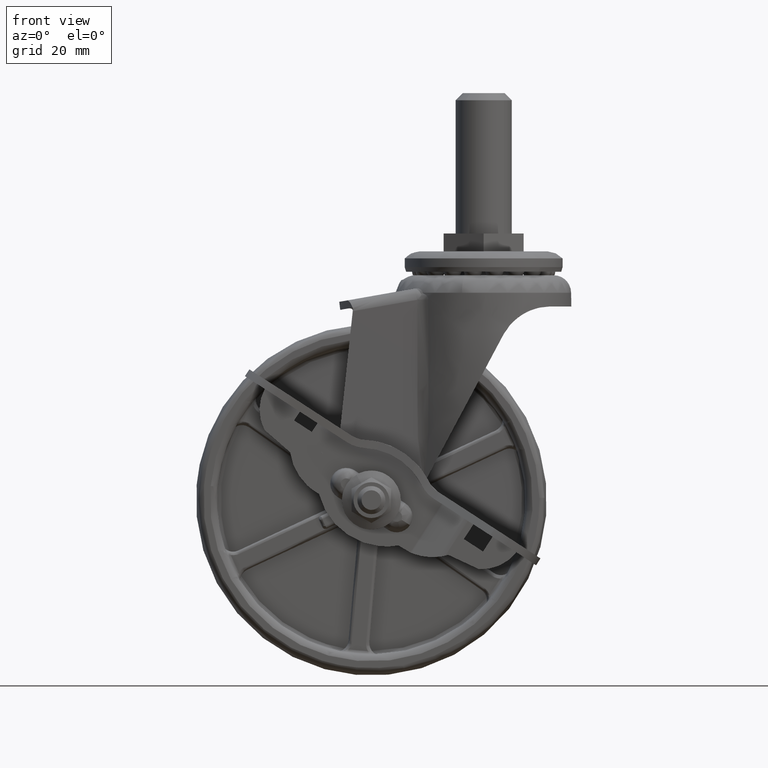
[diagram: clean part render]
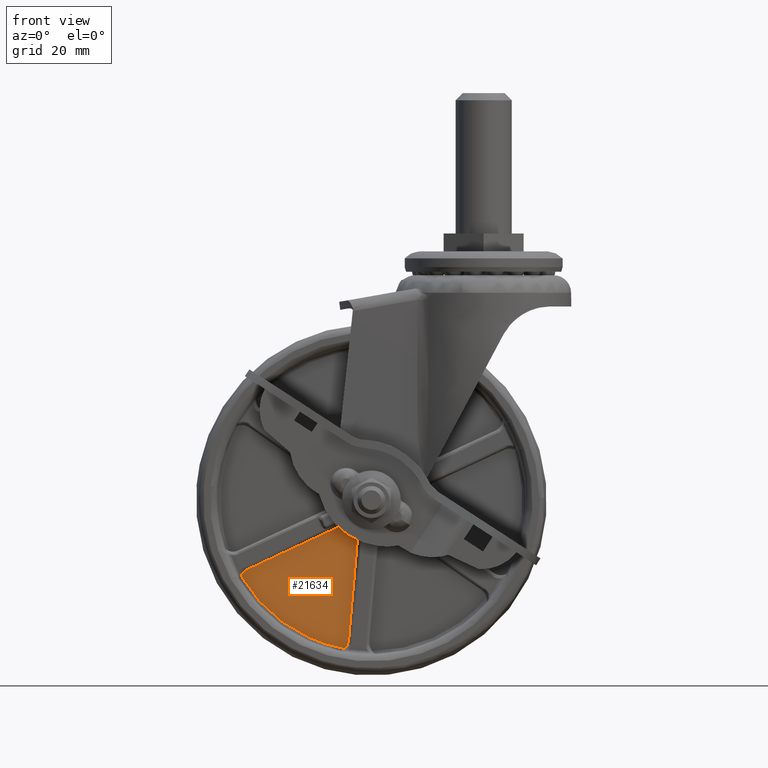
[diagram: same view with one face highlighted and labeled with its STEP entity id]
A machine part, front view. The second image highlights one B-rep face of the part: STEP entity #21634.
In plain terms, the highlighted face is a freeform B-spline surface patch.
Its self-contained STEP definition (entity closure, byte-faithful):
#18346=CARTESIAN_POINT('',(-3.0,-7.499999999999810,-11.013278645977801));
#18347=VERTEX_POINT('',#18346);
#18353=CARTESIAN_POINT('',(-3.0,-7.500000000000000,-40.481477245772552));
#18354=VERTEX_POINT('',#18353);
#18355=CARTESIAN_POINT('',(-3.0,-7.499999999999810,-11.013278645977801));
#18356=CARTESIAN_POINT('',(-3.0,-7.500000000000000,-40.481477245772552));
#18357=QUASI_UNIFORM_CURVE('',1,(#18355,#18356),.UNSPECIFIED.,.F.,.U.);
#18358=EDGE_CURVE('',#18347,#18354,#18357,.T.);
#18421=CARTESIAN_POINT('',(-3.898520270039960,-7.500000000000000,-42.822909118496348));
#18422=VERTEX_POINT('',#18421);
#18434=CARTESIAN_POINT('',(-3.898520270039960,-7.500000000000000,-42.822909118496348));
#18435=CARTESIAN_POINT('',(-3.630168333108022,-7.500000000000001,-42.525186253812393));
#18436=CARTESIAN_POINT('',(-3.169011123157780,-7.499999999999998,-41.790285971226780));
#18437=CARTESIAN_POINT('',(-2.999498348864940,-7.500000000000011,-40.935755640461238));
#18438=CARTESIAN_POINT('',(-3.0,-7.500000000000000,-40.481477245772552));
#18439=B_SPLINE_CURVE_WITH_KNOTS('',3,(#18434,#18435,#18436,#18437,#18438),.UNSPECIFIED.,.F.,.U.,(4,1,4),(0.000000062046968,1.202353224090292,2.564983310431263),.UNSPECIFIED.);
#18440=EDGE_CURVE('',#18422,#18354,#18439,.T.);
#19045=CARTESIAN_POINT('',(-8.037782745791832,-7.500000000000000,-8.104717647108620));
#19046=VERTEX_POINT('',#19045);
#19054=CARTESIAN_POINT('',(-33.557987677560597,-7.500000000000000,-22.838814834239749));
#19055=VERTEX_POINT('',#19054);
#19061=CARTESIAN_POINT('',(-8.037782745791832,-7.500000000000000,-8.104717647108620));
#19062=CARTESIAN_POINT('',(-33.557987677560597,-7.500000000000000,-22.838814834239749));
#19063=QUASI_UNIFORM_CURVE('',1,(#19061,#19062),.UNSPECIFIED.,.F.,.U.);
#19064=EDGE_CURVE('',#19046,#19055,#19063,.T.);
#19123=CARTESIAN_POINT('',(-35.136469616515647,-7.500000000000000,-24.787680119000751));
#19124=VERTEX_POINT('',#19123);
#19133=CARTESIAN_POINT('',(-33.557987677560597,-7.500000000000000,-22.838814834239749));
#19134=CARTESIAN_POINT('',(-33.951620533127652,-7.500000000000006,-23.065559830473511));
#19135=CARTESIAN_POINT('',(-34.606991774334460,-7.499999999999995,-23.639546867757868));
#19136=CARTESIAN_POINT('',(-35.012798738112870,-7.500000000000005,-24.406426663846162));
#19137=CARTESIAN_POINT('',(-35.136469616515647,-7.500000000000000,-24.787680119000751));
#19138=B_SPLINE_CURVE_WITH_KNOTS('',3,(#19133,#19134,#19135,#19136,#19137),.UNSPECIFIED.,.F.,.U.,(4,1,4),(0.000000062047822,1.362634600050119,2.564991690344884),.UNSPECIFIED.);
#19139=EDGE_CURVE('',#19055,#19124,#19138,.T.);
#21598=CARTESIAN_POINT('',(-8.037782745791832,-7.500000000000000,-8.104717647108620));
#21599=CARTESIAN_POINT('',(-7.320192709965275,-7.499999999999982,-8.816879899132180));
#21600=CARTESIAN_POINT('',(-5.743211499738491,-7.499999999999989,-10.010845304230539));
#21601=CARTESIAN_POINT('',(-3.916409346288129,-7.499999999999853,-10.763917807978290));
#21602=CARTESIAN_POINT('',(-3.0,-7.499999999999810,-11.013278645977801));
#21603=B_SPLINE_CURVE_WITH_KNOTS('',3,(#21598,#21599,#21600,#21601,#21602),.UNSPECIFIED.,.F.,.U.,(4,1,4),(0.000000014120662,3.032890543140290,5.882007730596044),.UNSPECIFIED.);
#21604=EDGE_CURVE('',#19046,#18347,#21603,.T.);
#21609=CARTESIAN_POINT('',(-36.741687418270622,-7.500000000000000,-44.557084018839731));
#21610=CARTESIAN_POINT('',(-36.741687418270622,-7.500000000000000,-6.370543057170051));
#21611=CARTESIAN_POINT('',(-1.394782485567451,-7.500000000000000,-44.557084018839731));
#21612=CARTESIAN_POINT('',(-1.394782485567451,-7.500000000000000,-6.370543057170051));
#21613=B_SPLINE_SURFACE_WITH_KNOTS('',1,1,((#21609,#21611),(#21610,#21612)),.UNSPECIFIED.,.F.,.F.,.U.,(2,2),(2,2),(0.0,38.186540961669678),(0.0,35.346904932703168),.UNSPECIFIED.);
#21614=ORIENTED_EDGE('',*,*,#18358,.F.);
#21615=ORIENTED_EDGE('',*,*,#21604,.F.);
#21616=ORIENTED_EDGE('',*,*,#19064,.T.);
#21617=ORIENTED_EDGE('',*,*,#19139,.T.);
#21618=CARTESIAN_POINT('',(-35.136469616515647,-7.500000000000000,-24.787680119000751));
#21619=CARTESIAN_POINT('',(-34.018974583855893,-7.500000000000004,-26.371810771755829));
#21620=CARTESIAN_POINT('',(-31.324352494028521,-7.500000000000010,-29.690355054706231));
#21621=CARTESIAN_POINT('',(-27.087194931278649,-7.499999999999970,-33.559312047518617));
#21622=CARTESIAN_POINT('',(-22.626368958330410,-7.500000000000019,-36.664509828724754));
#21623=CARTESIAN_POINT('',(-18.791960519252179,-7.500000000000006,-38.758905032254070));
#21624=CARTESIAN_POINT('',(-14.589073541950150,-7.499999999999968,-40.528390239661917));
#21625=CARTESIAN_POINT('',(-9.761415960671629,-7.500000000000146,-42.006178450105459));
#21626=CARTESIAN_POINT('',(-6.022247707202621,-7.499999999999845,-42.629694285411027));
#21627=CARTESIAN_POINT('',(-3.898520270039960,-7.500000000000000,-42.822909118496348));
#21628=B_SPLINE_CURVE_WITH_KNOTS('',3,(#21618,#21619,#21620,#21621,#21622,#21623,#21624,#21625,#21626,#21627),.UNSPECIFIED.,.F.,.U.,(4,1,1,1,1,1,1,4),(0.000000021828427,5.815892169871759,12.795008304513710,17.156941727754081,22.100441984638209,25.880776396823940,30.824312826062361,37.221800883283052),.UNSPECIFIED.);
#21629=EDGE_CURVE('',#19124,#18422,#21628,.T.);
#21630=ORIENTED_EDGE('',*,*,#21629,.T.);
#21631=ORIENTED_EDGE('',*,*,#18440,.T.);
#21632=EDGE_LOOP('',(#21614,#21615,#21616,#21617,#21630,#21631));
#21633=FACE_OUTER_BOUND('',#21632,.T.);
#21634=ADVANCED_FACE('',(#21633),#21613,.F.);